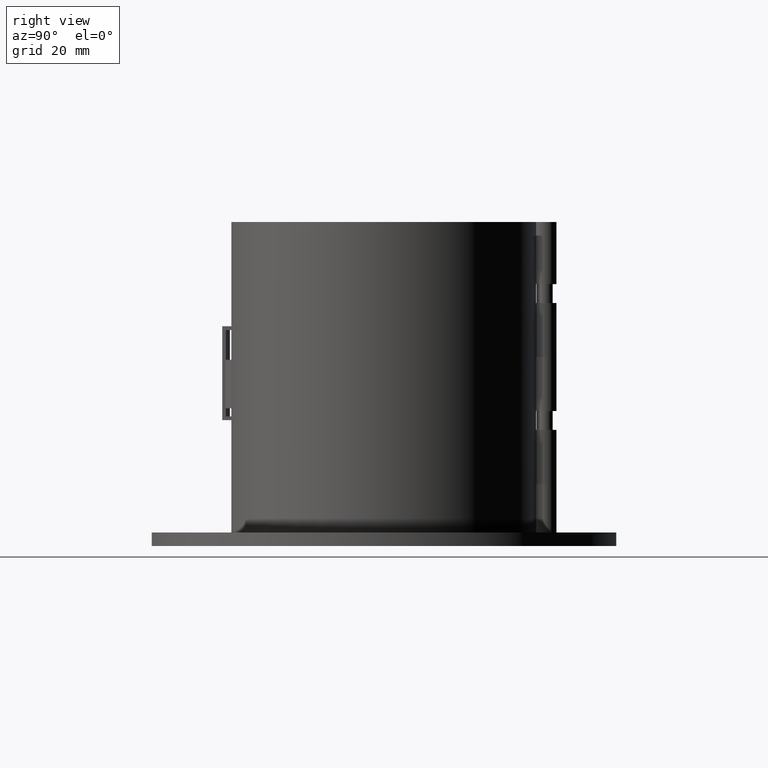
[diagram: clean part render]
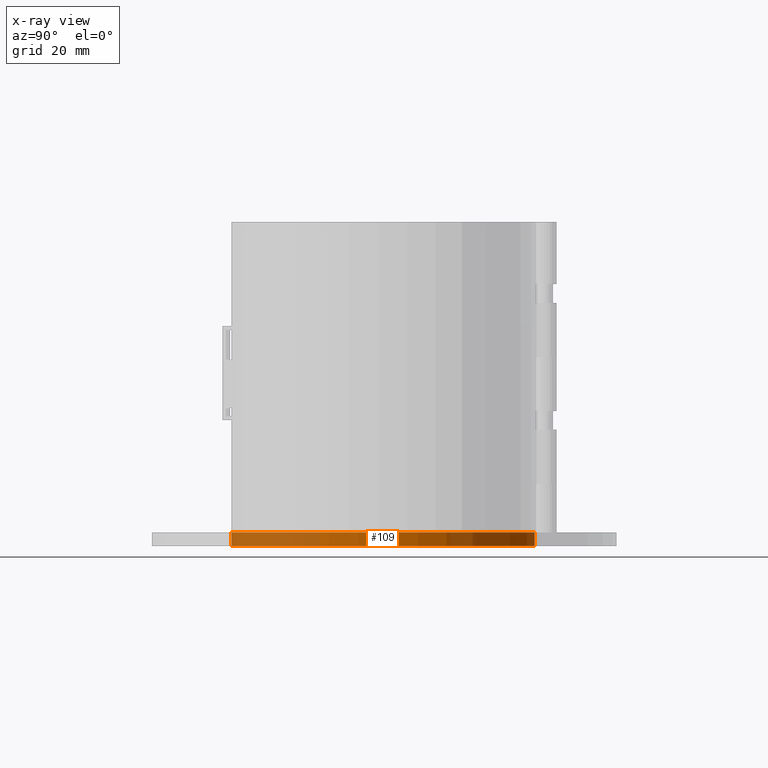
[diagram: x-ray — body ghosted, one internal face saturated and labeled with its STEP entity id]
A machine part, right view, then the same camera in x-ray: the body is ghosted and one INTERNAL B-rep face — a face not visible from any outside direction — is saturated and labeled: STEP entity #109.
In plain terms, the highlighted cylindrical surface (partial cylindrical patch) has radius 28.25 mm, axis along (0, 0, 1).
Its self-contained STEP definition (entity closure, byte-faithful):
#68=CARTESIAN_POINT('',(0.0,0.0,0.0));
#69=DIRECTION('',(0.0,0.0,1.0));
#70=DIRECTION('',(0.017699115044248,-0.999843358395029,0.0));
#71=AXIS2_PLACEMENT_3D('',#68,#69,#70);
#72=CYLINDRICAL_SURFACE('',#71,28.250000000000004);
#73=CARTESIAN_POINT('',(0.5,-28.245574874659575,2.5));
#74=VERTEX_POINT('',#73);
#75=CARTESIAN_POINT('',(4.485704444706498,27.891592920353986,2.5));
#76=VERTEX_POINT('',#75);
#77=CARTESIAN_POINT('',(0.0,0.0,2.5));
#78=DIRECTION('',(0.0,0.0,1.0));
#79=DIRECTION('',(0.017699115044248,-0.999843358395029,0.0));
#80=AXIS2_PLACEMENT_3D('',#77,#78,#79);
#81=CIRCLE('',#80,28.250000000000004);
#82=EDGE_CURVE('',#74,#76,#81,.T.);
#83=ORIENTED_EDGE('',*,*,#82,.T.);
#84=CARTESIAN_POINT('',(4.485704444706498,27.891592920353986,0.0));
#85=VERTEX_POINT('',#84);
#86=CARTESIAN_POINT('',(4.485704444706498,27.891592920353986,0.0));
#87=DIRECTION('',(0.0,0.0,1.0));
#88=VECTOR('',#87,2.5);
#89=LINE('',#86,#88);
#90=EDGE_CURVE('',#85,#76,#89,.T.);
#91=ORIENTED_EDGE('',*,*,#90,.F.);
#92=CARTESIAN_POINT('',(0.5,-28.245574874659575,0.0));
#93=VERTEX_POINT('',#92);
#94=CARTESIAN_POINT('',(0.0,0.0,0.0));
#95=DIRECTION('',(0.0,0.0,1.0));
#96=DIRECTION('',(0.017699115044248,-0.999843358395029,0.0));
#97=AXIS2_PLACEMENT_3D('',#94,#95,#96);
#98=CIRCLE('',#97,28.250000000000004);
#99=EDGE_CURVE('',#93,#85,#98,.T.);
#100=ORIENTED_EDGE('',*,*,#99,.F.);
#101=CARTESIAN_POINT('',(0.5,-28.245574874659575,0.0));
#102=DIRECTION('',(0.0,0.0,1.0));
#103=VECTOR('',#102,2.5);
#104=LINE('',#101,#103);
#105=EDGE_CURVE('',#93,#74,#104,.T.);
#106=ORIENTED_EDGE('',*,*,#105,.T.);
#107=EDGE_LOOP('',(#83,#91,#100,#106));
#108=FACE_OUTER_BOUND('',#107,.T.);
#109=ADVANCED_FACE('',(#108),#72,.F.);